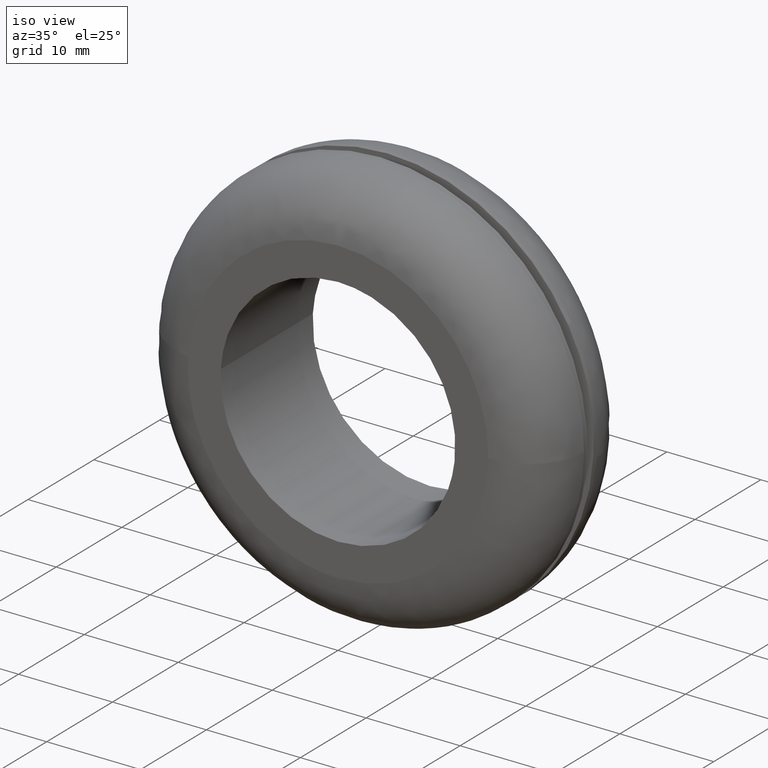
[diagram: clean part render]
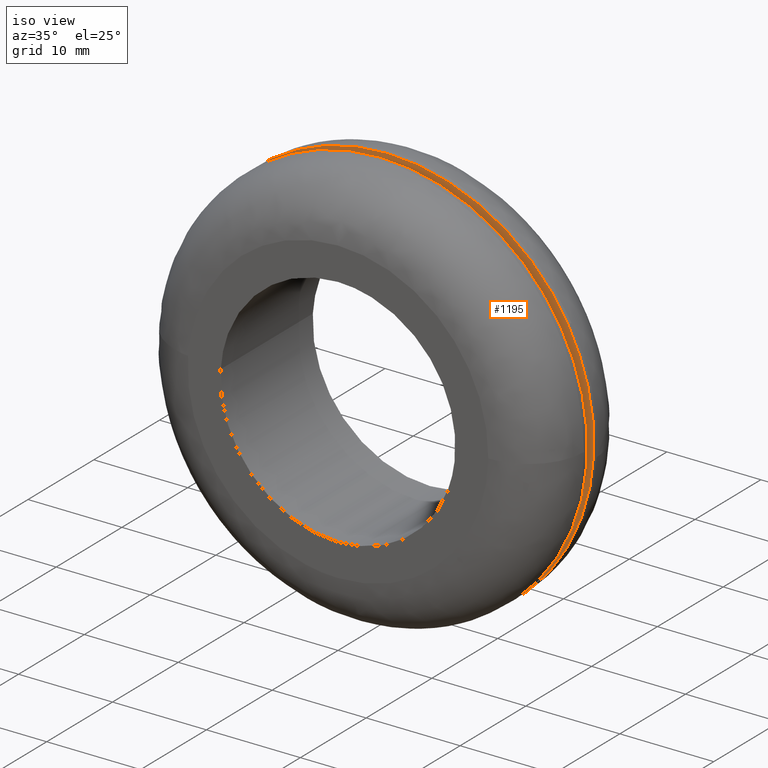
[diagram: same view with one face highlighted and labeled with its STEP entity id]
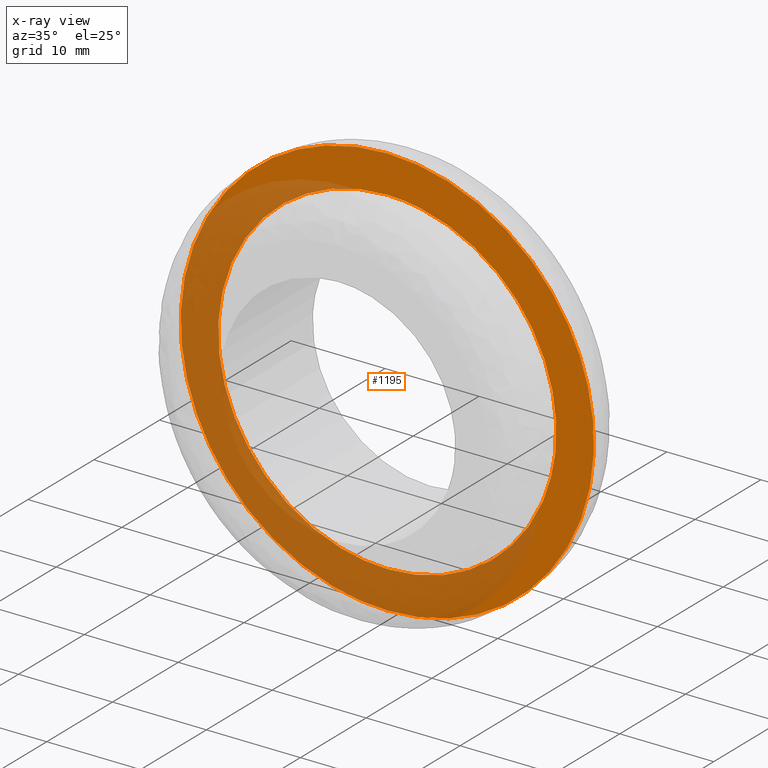
[diagram: x-ray of the same camera — body ghosted, the highlighted face saturated]
A machine part, iso view. The second image highlights one B-rep face of the part: STEP entity #1195.
The next image is the same camera in x-ray: the body ghosted, the highlighted face saturated — about 51% of this face is hidden behind the body in this view.
In plain terms, the highlighted face is a freeform B-spline surface patch.
Its self-contained STEP definition (entity closure, byte-faithful):
#301=CARTESIAN_POINT('',(17.874172381895988,7.500000000000000,-2.124608590354324));
#302=VERTEX_POINT('',#301);
#308=CARTESIAN_POINT('',(0.0,7.500000000000000,18.0));
#309=VERTEX_POINT('',#308);
#310=CARTESIAN_POINT('',(17.874172381895985,7.500000000000000,-2.124608590354324));
#311=CARTESIAN_POINT('',(18.0,7.500000000000000,-1.066030296650943));
#312=CARTESIAN_POINT('',(18.0,7.500000000000000,-3.673819E-016));
#313=CARTESIAN_POINT('',(18.000000000000007,7.500000000000000,18.000000000000007));
#314=CARTESIAN_POINT('',(0.0,7.500000000000000,18.0));
#322=(BOUNDED_CURVE()B_SPLINE_CURVE(2,(#310,#311,#312,#313,#314),.UNSPECIFIED.,.F.,.U.)B_SPLINE_CURVE_WITH_KNOTS((3,2,3),(0.229562545691343,0.250000000000000,0.500000000000000),.UNSPECIFIED.)CURVE()GEOMETRIC_REPRESENTATION_ITEM()RATIONAL_B_SPLINE_CURVE((0.956026895655258,0.976056032892738,1.0,0.707106781186547,1.0))REPRESENTATION_ITEM(''));
#323=EDGE_CURVE('',#302,#309,#322,.T.);
#325=CARTESIAN_POINT('',(-17.966427382863390,7.500000000000000,1.098857177262872));
#326=VERTEX_POINT('',#325);
#327=CARTESIAN_POINT('',(0.0,7.500000000000000,18.0));
#328=CARTESIAN_POINT('',(-16.932724816470770,7.500000000000000,18.0));
#329=CARTESIAN_POINT('',(-17.966427382863383,7.500000000000000,1.098857177262872));
#337=(BOUNDED_CURVE()B_SPLINE_CURVE(2,(#327,#328,#329),.UNSPECIFIED.,.F.,.U.)B_SPLINE_CURVE_WITH_KNOTS((3,3),(0.500000000000000,0.739333121035476),.UNSPECIFIED.)CURVE()GEOMETRIC_REPRESENTATION_ITEM()RATIONAL_B_SPLINE_CURVE((1.0,0.719603807244999,0.976072381998152))REPRESENTATION_ITEM(''));
#338=EDGE_CURVE('',#309,#326,#337,.T.);
#412=CARTESIAN_POINT('',(0.0,7.500000000000000,-18.0));
#413=VERTEX_POINT('',#412);
#414=CARTESIAN_POINT('',(-17.966427382863383,7.500000000000000,1.098857177262872));
#415=CARTESIAN_POINT('',(-18.000000000000004,7.500000000000000,0.549941449012534));
#416=CARTESIAN_POINT('',(-18.0,7.500000000000000,-3.673819E-016));
#417=CARTESIAN_POINT('',(-18.000000000000007,7.500000000000000,-18.000000000000007));
#418=CARTESIAN_POINT('',(0.0,7.500000000000000,-18.0));
#426=(BOUNDED_CURVE()B_SPLINE_CURVE(2,(#414,#415,#416,#417,#418),.UNSPECIFIED.,.F.,.U.)B_SPLINE_CURVE_WITH_KNOTS((3,2,3),(0.739333121035476,0.750000000000000,1.0),.UNSPECIFIED.)CURVE()GEOMETRIC_REPRESENTATION_ITEM()RATIONAL_B_SPLINE_CURVE((0.976072381998152,0.987502973941548,1.0,0.707106781186547,1.0))REPRESENTATION_ITEM(''));
#427=EDGE_CURVE('',#326,#413,#426,.T.);
#429=CARTESIAN_POINT('',(0.0,7.500000000000000,-18.0));
#430=CARTESIAN_POINT('',(15.987148342768814,7.500000000000000,-18.000000000000011));
#431=CARTESIAN_POINT('',(17.874172381895985,7.500000000000000,-2.124608590354324));
#439=(BOUNDED_CURVE()B_SPLINE_CURVE(2,(#429,#430,#431),.UNSPECIFIED.,.F.,.U.)B_SPLINE_CURVE_WITH_KNOTS((3,3),(0.0,0.229562545691343),.UNSPECIFIED.)CURVE()GEOMETRIC_REPRESENTATION_ITEM()RATIONAL_B_SPLINE_CURVE((1.0,0.731050748293809,0.956026895655258))REPRESENTATION_ITEM(''));
#440=EDGE_CURVE('',#413,#302,#439,.T.);
#496=CARTESIAN_POINT('',(-14.862983696161990,7.500000000000000,16.220102208297622));
#497=VERTEX_POINT('',#496);
#503=CARTESIAN_POINT('',(0.0,7.500000000000000,22.0));
#504=VERTEX_POINT('',#503);
#505=CARTESIAN_POINT('',(0.0,7.500000000000000,22.0));
#506=CARTESIAN_POINT('',(-8.555331420452751,7.500000000000001,22.000000000000004));
#507=CARTESIAN_POINT('',(-14.862983696162022,7.500000000000000,16.220102208297643));
#515=(BOUNDED_CURVE()B_SPLINE_CURVE(2,(#505,#506,#507),.UNSPECIFIED.,.F.,.U.)B_SPLINE_CURVE_WITH_KNOTS((3,3),(0.500000000000000,0.618415200974131),.UNSPECIFIED.)CURVE()GEOMETRIC_REPRESENTATION_ITEM()RATIONAL_B_SPLINE_CURVE((1.0,0.861267962520980,0.853959781838990))REPRESENTATION_ITEM(''));
#516=EDGE_CURVE('',#504,#497,#515,.T.);
#518=CARTESIAN_POINT('',(19.248823218526699,7.500000000000000,10.652830830436260));
#519=VERTEX_POINT('',#518);
#520=CARTESIAN_POINT('',(19.248823218526692,7.499999999999999,10.652830830436264));
#521=CARTESIAN_POINT('',(12.968986150286980,7.499999999999999,22.0));
#522=CARTESIAN_POINT('',(0.0,7.500000000000000,22.0));
#530=(BOUNDED_CURVE()B_SPLINE_CURVE(2,(#520,#521,#522),.UNSPECIFIED.,.F.,.U.)B_SPLINE_CURVE_WITH_KNOTS((3,3),(0.332484262755645,0.500000000000000),.UNSPECIFIED.)CURVE()GEOMETRIC_REPRESENTATION_ITEM()RATIONAL_B_SPLINE_CURVE((0.870495158345373,0.803743106066369,1.0))REPRESENTATION_ITEM(''));
#531=EDGE_CURVE('',#519,#504,#530,.T.);
#581=CARTESIAN_POINT('',(0.0,7.500000000000000,-22.0));
#582=VERTEX_POINT('',#581);
#583=CARTESIAN_POINT('',(0.0,7.500000000000000,-22.0));
#584=CARTESIAN_POINT('',(22.000000000000007,7.500000000000000,-22.000000000000007));
#585=CARTESIAN_POINT('',(22.0,7.500000000000000,-3.673819E-016));
#586=CARTESIAN_POINT('',(22.000000000000007,7.500000000000001,5.681671863170561));
#587=CARTESIAN_POINT('',(19.248823218526692,7.499999999999999,10.652830830436264));
#595=(BOUNDED_CURVE()B_SPLINE_CURVE(2,(#583,#584,#585,#586,#587),.UNSPECIFIED.,.F.,.U.)B_SPLINE_CURVE_WITH_KNOTS((3,2,3),(0.0,0.250000000000000,0.332484262755645),.UNSPECIFIED.)CURVE()GEOMETRIC_REPRESENTATION_ITEM()RATIONAL_B_SPLINE_CURVE((1.0,0.707106781186548,1.0,0.903363675120178,0.870495158345373))REPRESENTATION_ITEM(''));
#596=EDGE_CURVE('',#582,#519,#595,.T.);
#598=CARTESIAN_POINT('',(-14.862983696162022,7.500000000000000,16.220102208297643));
#599=CARTESIAN_POINT('',(-22.0,7.499999999999999,9.680232384979210));
#600=CARTESIAN_POINT('',(-22.0,7.500000000000000,-3.673819E-016));
#601=CARTESIAN_POINT('',(-22.000000000000007,7.500000000000000,-22.000000000000007));
#602=CARTESIAN_POINT('',(0.0,7.500000000000000,-22.0));
#610=(BOUNDED_CURVE()B_SPLINE_CURVE(2,(#598,#599,#600,#601,#602),.UNSPECIFIED.,.F.,.U.)B_SPLINE_CURVE_WITH_KNOTS((3,2,3),(0.618415200974131,0.750000000000000,1.0),.UNSPECIFIED.)CURVE()GEOMETRIC_REPRESENTATION_ITEM()RATIONAL_B_SPLINE_CURVE((0.853959781838990,0.845838818665568,1.0,0.707106781186548,1.0))REPRESENTATION_ITEM(''));
#611=EDGE_CURVE('',#497,#582,#610,.T.);
#1178=CARTESIAN_POINT('',(-24.187786883336312,7.500000000000000,-24.197799914719461));
#1179=CARTESIAN_POINT('',(-24.187786883336312,7.500000000000000,24.197801094891432));
#1180=CARTESIAN_POINT('',(24.192237705212829,7.500000000000000,-24.197799914719461));
#1181=CARTESIAN_POINT('',(24.192237705212829,7.500000000000000,24.197801094891432));
#1182=B_SPLINE_SURFACE_WITH_KNOTS('',1,1,((#1178,#1180),(#1179,#1181)),.UNSPECIFIED.,.F.,.F.,.U.,(2,2),(2,2),(0.0,48.395601009610893),(0.0,48.380024588549148),.UNSPECIFIED.);
#1183=ORIENTED_EDGE('',*,*,#596,.T.);
#1184=ORIENTED_EDGE('',*,*,#531,.T.);
#1185=ORIENTED_EDGE('',*,*,#516,.T.);
#1186=ORIENTED_EDGE('',*,*,#611,.T.);
#1187=EDGE_LOOP('',(#1183,#1184,#1185,#1186));
#1188=FACE_OUTER_BOUND('',#1187,.T.);
#1189=ORIENTED_EDGE('',*,*,#338,.F.);
#1190=ORIENTED_EDGE('',*,*,#323,.F.);
#1191=ORIENTED_EDGE('',*,*,#440,.F.);
#1192=ORIENTED_EDGE('',*,*,#427,.F.);
#1193=EDGE_LOOP('',(#1189,#1190,#1191,#1192));
#1194=FACE_BOUND('',#1193,.T.);
#1195=ADVANCED_FACE('',(#1188,#1194),#1182,.F.);